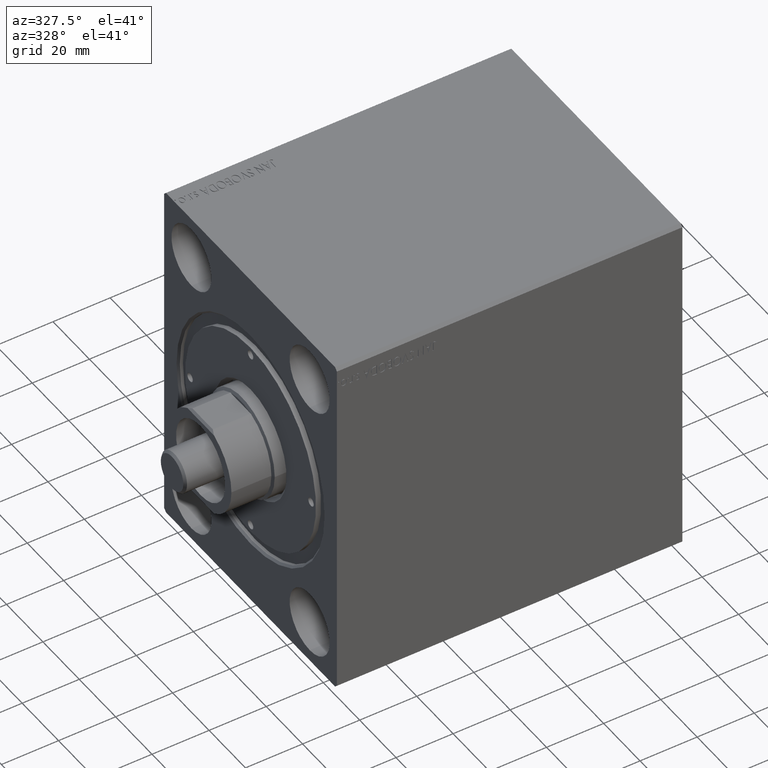
[diagram: clean part render]
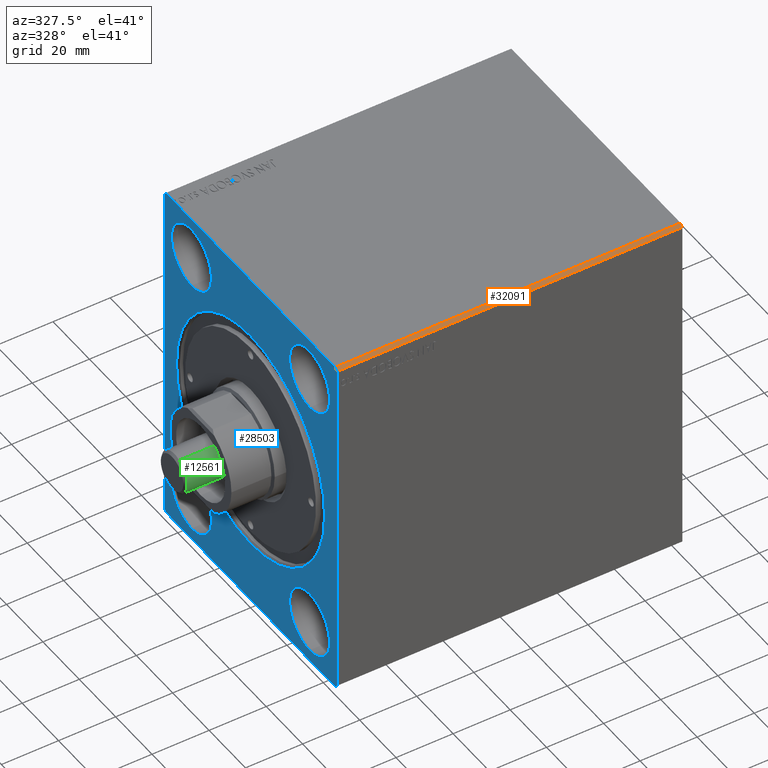
[diagram: same view with three faces highlighted in distinct colors, each labeled with its STEP entity id]
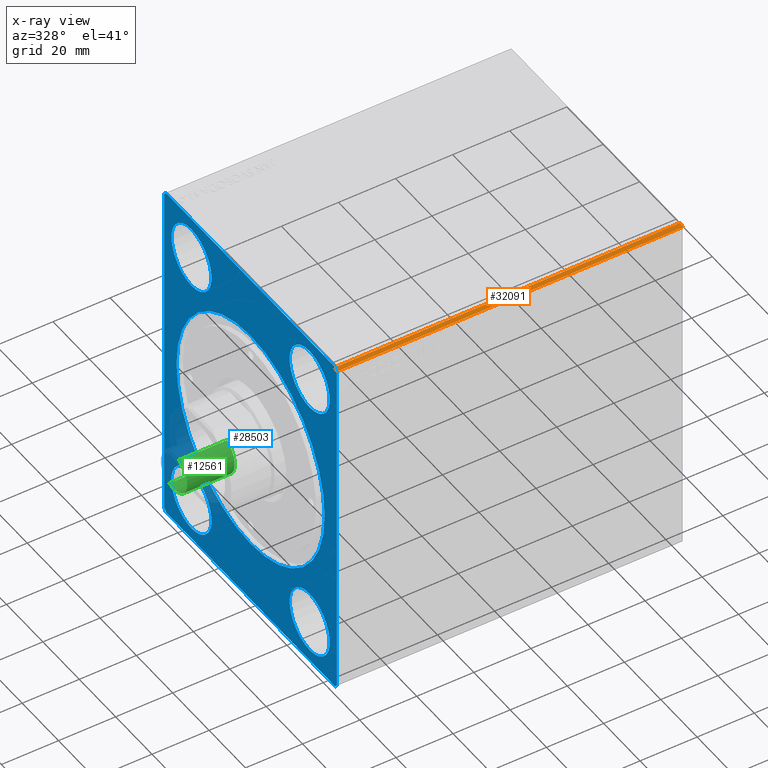
[diagram: x-ray of the same camera — body ghosted, the three highlighted faces saturated]
A machine part, auxiliary view with three faces highlighted in distinct colors.
The next image is the same camera in x-ray (body ghosted, the three faces saturated) — at least one of them is partly hidden behind the body in this view.
Their STEP definitions:

[orange] entity #32091 — the highlighted planar face has unit normal (0, 0.7071, -0.7071).
#1975 = CARTESIAN_POINT ( 'NONE',  ( 121.0000000000000000, -47.50000000000001421, 61.49999999999997868 ) ) ;
#2354 = VERTEX_POINT ( 'NONE', #1975 ) ;
#2754 = CARTESIAN_POINT ( 'NONE',  ( 121.0000000000000000, -47.50000000000001421, 61.49999999999997868 ) ) ;
#2864 = VERTEX_POINT ( 'NONE', #10656 ) ;
#2945 = DIRECTION ( 'NONE',  ( 0.000000000000000000, 0.7071067811865475727, -0.7071067811865475727 ) ) ;
#3868 = EDGE_CURVE ( 'NONE', #33225, #25822, #42419, .T. ) ;
#4122 = CARTESIAN_POINT ( 'NONE',  ( 0.000000000000000000, -46.50000000000001421, 62.49999999999997868 ) ) ;
#4452 = ORIENTED_EDGE ( 'NONE', *, *, #24323, .T. ) ;
#6919 = VECTOR ( 'NONE', #12329, 1000.000000000000000 ) ;
#8288 = ORIENTED_EDGE ( 'NONE', *, *, #25709, .F. ) ;
#9176 = LINE ( 'NONE', #16149, #6919 ) ;
#9490 = PLANE ( 'NONE',  #40849 ) ;
#9739 = LINE ( 'NONE', #2754, #19890 ) ;
#10656 = CARTESIAN_POINT ( 'NONE',  ( 121.0000000000000000, -46.50000000000001421, 62.49999999999997868 ) ) ;
#11609 = DIRECTION ( 'NONE',  ( 0.000000000000000000, -0.7071067811865474617, -0.7071067811865474617 ) ) ;
#12329 = DIRECTION ( 'NONE',  ( -1.000000000000000000, -0.000000000000000000, -0.000000000000000000 ) ) ;
#15251 = ORIENTED_EDGE ( 'NONE', *, *, #3868, .T. ) ;
#16149 = CARTESIAN_POINT ( 'NONE',  ( 121.0000000000000000, -46.50000000000001421, 62.49999999999997868 ) ) ;
#16266 = DIRECTION ( 'NONE',  ( -1.000000000000000000, -0.000000000000000000, -0.000000000000000000 ) ) ;
#19890 = VECTOR ( 'NONE', #16266, 1000.000000000000000 ) ;
#20362 = DIRECTION ( 'NONE',  ( 0.000000000000000000, -0.7071067811865474617, -0.7071067811865474617 ) ) ;
#20537 = ORIENTED_EDGE ( 'NONE', *, *, #27415, .F. ) ;
#20619 = VECTOR ( 'NONE', #20362, 1000.000000000000114 ) ;
#24165 = LINE ( 'NONE', #43764, #20619 ) ;
#24323 = EDGE_CURVE ( 'NONE', #2864, #33225, #9176, .T. ) ;
#25088 = CARTESIAN_POINT ( 'NONE',  ( 0.000000000000000000, -46.50000000000001421, 62.49999999999997868 ) ) ;
#25709 = EDGE_CURVE ( 'NONE', #2354, #25822, #9739, .T. ) ;
#25822 = VERTEX_POINT ( 'NONE', #37396 ) ;
#26542 = EDGE_LOOP ( 'NONE', ( #15251, #8288, #20537, #4452 ) ) ;
#27415 = EDGE_CURVE ( 'NONE', #2864, #2354, #24165, .T. ) ;
#29716 = CARTESIAN_POINT ( 'NONE',  ( 121.0000000000000000, -46.50000000000001421, 62.49999999999997868 ) ) ;
#29932 = FACE_OUTER_BOUND ( 'NONE', #26542, .T. ) ;
#32091 = ADVANCED_FACE ( 'NONE', ( #29932 ), #9490, .F. ) ;
#33225 = VERTEX_POINT ( 'NONE', #4122 ) ;
#35255 = VECTOR ( 'NONE', #11609, 1000.000000000000114 ) ;
#36927 = DIRECTION ( 'NONE',  ( 0.000000000000000000, 0.7071067811865474617, 0.7071067811865474617 ) ) ;
#37396 = CARTESIAN_POINT ( 'NONE',  ( 0.000000000000000000, -47.50000000000001421, 61.49999999999997868 ) ) ;
#40849 = AXIS2_PLACEMENT_3D ( 'NONE', #29716, #2945, #36927 ) ;
#42419 = LINE ( 'NONE', #25088, #35255 ) ;
#43764 = CARTESIAN_POINT ( 'NONE',  ( 121.0000000000000000, -46.50000000000001421, 62.49999999999997868 ) ) ;

[blue] entity #28503 — the highlighted planar face has unit normal (1, 0, 0).
#1 = CARTESIAN_POINT ( 'NONE',  ( 0.000000000000000000, -32.50000000000000000, -47.50000000000000000 ) ) ;
#70 = DIRECTION ( 'NONE',  ( 0.000000000000000000, 0.000000000000000000, -1.000000000000000000 ) ) ;
#278 = EDGE_CURVE ( 'NONE', #40689, #43342, #18637, .T. ) ;
#525 = DIRECTION ( 'NONE',  ( 1.000000000000000000, -0.000000000000000000, -0.000000000000000000 ) ) ;
#1278 = AXIS2_PLACEMENT_3D ( 'NONE', #1, #33317, #37353 ) ;
#1337 = EDGE_CURVE ( 'NONE', #3130, #6342, #41623, .T. ) ;
#1348 = EDGE_LOOP ( 'NONE', ( #37266, #19938 ) ) ;
#1397 = VECTOR ( 'NONE', #19410, 1000.000000000000000 ) ;
#1519 = VERTEX_POINT ( 'NONE', #16409 ) ;
#1808 = DIRECTION ( 'NONE',  ( 0.000000000000000000, 0.000000000000000000, -1.000000000000000000 ) ) ;
#2723 = CARTESIAN_POINT ( 'NONE',  ( 0.000000000000000000, 47.50000000000000000, 61.49999999999998579 ) ) ;
#2757 = VERTEX_POINT ( 'NONE', #27967 ) ;
#3002 = CARTESIAN_POINT ( 'NONE',  ( 0.000000000000000000, 0.000000000000000000, 0.000000000000000000 ) ) ;
#3130 = VERTEX_POINT ( 'NONE', #15694 ) ;
#3158 = DIRECTION ( 'NONE',  ( 0.000000000000000000, 0.7071067811865451302, -0.7071067811865500152 ) ) ;
#3281 = EDGE_CURVE ( 'NONE', #26745, #5680, #36684, .T. ) ;
#3442 = EDGE_CURVE ( 'NONE', #25822, #26407, #3840, .T. ) ;
#3659 = DIRECTION ( 'NONE',  ( 0.000000000000000000, 0.000000000000000000, -1.000000000000000000 ) ) ;
#3784 = CARTESIAN_POINT ( 'NONE',  ( 0.000000000000000000, 0.000000000000000000, 0.000000000000000000 ) ) ;
#3840 = LINE ( 'NONE', #15534, #8656 ) ;
#3868 = EDGE_CURVE ( 'NONE', #33225, #25822, #42419, .T. ) ;
#3897 = CARTESIAN_POINT ( 'NONE',  ( 0.000000000000000000, -32.50000000000000000, -47.50000000000000000 ) ) ;
#4122 = CARTESIAN_POINT ( 'NONE',  ( 0.000000000000000000, -46.50000000000001421, 62.49999999999997868 ) ) ;
#4349 = DIRECTION ( 'NONE',  ( 0.000000000000000000, 0.000000000000000000, -1.000000000000000000 ) ) ;
#4485 = VECTOR ( 'NONE', #5696, 999.9999999999998863 ) ;
#4789 = CARTESIAN_POINT ( 'NONE',  ( 0.000000000000000000, 46.50000000000000000, 62.49999999999998579 ) ) ;
#4831 = EDGE_CURVE ( 'NONE', #13912, #29245, #6207, .T. ) ;
#5680 = VERTEX_POINT ( 'NONE', #33278 ) ;
#5695 = LINE ( 'NONE', #4789, #1397 ) ;
#5696 = DIRECTION ( 'NONE',  ( 0.000000000000000000, 0.7071067811865574537, 0.7071067811865376918 ) ) ;
#6207 = LINE ( 'NONE', #19257, #38138 ) ;
#6342 = VERTEX_POINT ( 'NONE', #33392 ) ;
#6750 = EDGE_CURVE ( 'NONE', #10697, #24282, #20222, .T. ) ;
#7044 = FACE_BOUND ( 'NONE', #37785, .T. ) ;
#8124 = ORIENTED_EDGE ( 'NONE', *, *, #3442, .F. ) ;
#8656 = VECTOR ( 'NONE', #43188, 1000.000000000000000 ) ;
#9065 = LINE ( 'NONE', #36508, #4485 ) ;
#9392 = AXIS2_PLACEMENT_3D ( 'NONE', #24408, #24849, #12652 ) ;
#9521 = EDGE_CURVE ( 'NONE', #29245, #3130, #9065, .T. ) ;
#9660 = VECTOR ( 'NONE', #3158, 1000.000000000000114 ) ;
#9798 = DIRECTION ( 'NONE',  ( 0.000000000000000000, 1.000000000000000000, 1.492235248152092278E-16 ) ) ;
#9988 = CARTESIAN_POINT ( 'NONE',  ( 0.000000000000000000, -32.50000000000000000, -58.50000000000000000 ) ) ;
#10199 = DIRECTION ( 'NONE',  ( 1.000000000000000000, -0.000000000000000000, -0.000000000000000000 ) ) ;
#10215 = CARTESIAN_POINT ( 'NONE',  ( 0.000000000000000000, 0.000000000000000000, 40.70000000000001705 ) ) ;
#10697 = VERTEX_POINT ( 'NONE', #23821 ) ;
#10755 = DIRECTION ( 'NONE',  ( 0.000000000000000000, 0.000000000000000000, -1.000000000000000000 ) ) ;
#10969 = ORIENTED_EDGE ( 'NONE', *, *, #278, .T. ) ;
#11346 = CIRCLE ( 'NONE', #26431, 40.70000000000001705 ) ;
#11385 = DIRECTION ( 'NONE',  ( 0.000000000000000000, 0.000000000000000000, 1.000000000000000000 ) ) ;
#11609 = DIRECTION ( 'NONE',  ( 0.000000000000000000, -0.7071067811865474617, -0.7071067811865474617 ) ) ;
#11681 = DIRECTION ( 'NONE',  ( 1.000000000000000000, 0.000000000000000000, 0.000000000000000000 ) ) ;
#12211 = VECTOR ( 'NONE', #13309, 1000.000000000000000 ) ;
#12652 = DIRECTION ( 'NONE',  ( 0.000000000000000000, 0.000000000000000000, 1.000000000000000000 ) ) ;
#12724 = EDGE_CURVE ( 'NONE', #5680, #26745, #16779, .T. ) ;
#13309 = DIRECTION ( 'NONE',  ( 0.000000000000000000, -1.128275431529630729E-16, 1.000000000000000000 ) ) ;
#13573 = CARTESIAN_POINT ( 'NONE',  ( 0.000000000000000000, 32.50000000000000000, -47.50000000000000000 ) ) ;
#13868 = ORIENTED_EDGE ( 'NONE', *, *, #33207, .T. ) ;
#13912 = VERTEX_POINT ( 'NONE', #17204 ) ;
#14489 = AXIS2_PLACEMENT_3D ( 'NONE', #3784, #26578, #10755 ) ;
#15534 = CARTESIAN_POINT ( 'NONE',  ( 0.000000000000000000, -47.50000000000001421, 61.49999999999997868 ) ) ;
#15574 = ORIENTED_EDGE ( 'NONE', *, *, #6750, .T. ) ;
#15625 = LINE ( 'NONE', #29325, #9660 ) ;
#15694 = CARTESIAN_POINT ( 'NONE',  ( 0.000000000000000000, 47.50000000000001421, -61.50000000000001421 ) ) ;
#16116 = EDGE_CURVE ( 'NONE', #26407, #13912, #15625, .T. ) ;
#16409 = CARTESIAN_POINT ( 'NONE',  ( 0.000000000000000000, -32.50000000000000000, 36.50000000000000711 ) ) ;
#16450 = AXIS2_PLACEMENT_3D ( 'NONE', #28913, #28246, #11385 ) ;
#16779 = CIRCLE ( 'NONE', #26819, 10.99999999999999645 ) ;
#17057 = ORIENTED_EDGE ( 'NONE', *, *, #43610, .T. ) ;
#17204 = CARTESIAN_POINT ( 'NONE',  ( 0.000000000000000000, -46.50000000000000000, -62.50000000000001421 ) ) ;
#17666 = VERTEX_POINT ( 'NONE', #24107 ) ;
#18637 = CIRCLE ( 'NONE', #22228, 10.99999999999999645 ) ;
#19257 = CARTESIAN_POINT ( 'NONE',  ( 0.000000000000000000, -46.50000000000000000, -62.50000000000001421 ) ) ;
#19410 = DIRECTION ( 'NONE',  ( 0.000000000000000000, -1.000000000000000000, -7.461176240760460157E-17 ) ) ;
#19938 = ORIENTED_EDGE ( 'NONE', *, *, #12724, .F. ) ;
#20051 = LINE ( 'NONE', #2723, #31415 ) ;
#20222 = CIRCLE ( 'NONE', #14489, 40.70000000000001705 ) ;
#20746 = FACE_BOUND ( 'NONE', #40372, .T. ) ;
#20785 = ORIENTED_EDGE ( 'NONE', *, *, #35995, .F. ) ;
#21451 = CIRCLE ( 'NONE', #16450, 10.99999999999999645 ) ;
#21531 = ORIENTED_EDGE ( 'NONE', *, *, #9521, .F. ) ;
#21767 = ORIENTED_EDGE ( 'NONE', *, *, #4831, .F. ) ;
#22228 = AXIS2_PLACEMENT_3D ( 'NONE', #42300, #28791, #1808 ) ;
#23322 = ORIENTED_EDGE ( 'NONE', *, *, #3868, .F. ) ;
#23421 = VERTEX_POINT ( 'NONE', #9988 ) ;
#23467 = FACE_OUTER_BOUND ( 'NONE', #42630, .T. ) ;
#23688 = CARTESIAN_POINT ( 'NONE',  ( 0.000000000000000000, 32.50000000000000000, 47.50000000000000000 ) ) ;
#23742 = CARTESIAN_POINT ( 'NONE',  ( 0.000000000000000000, 32.50000000000000000, 58.50000000000000000 ) ) ;
#23821 = CARTESIAN_POINT ( 'NONE',  ( 0.000000000000000000, 4.984312472529728892E-15, -40.70000000000001705 ) ) ;
#24107 = CARTESIAN_POINT ( 'NONE',  ( 0.000000000000000000, -32.50000000000000000, -36.50000000000000711 ) ) ;
#24282 = VERTEX_POINT ( 'NONE', #10215 ) ;
#24408 = CARTESIAN_POINT ( 'NONE',  ( 0.000000000000000000, 32.50000000000000000, -47.50000000000000000 ) ) ;
#24849 = DIRECTION ( 'NONE',  ( -1.000000000000000000, 0.000000000000000000, 0.000000000000000000 ) ) ;
#25088 = CARTESIAN_POINT ( 'NONE',  ( 0.000000000000000000, -46.50000000000001421, 62.49999999999997868 ) ) ;
#25522 = CARTESIAN_POINT ( 'NONE',  ( 0.000000000000000000, 46.50000000000000000, -62.50000000000000000 ) ) ;
#25822 = VERTEX_POINT ( 'NONE', #37396 ) ;
#26407 = VERTEX_POINT ( 'NONE', #39225 ) ;
#26431 = AXIS2_PLACEMENT_3D ( 'NONE', #44356, #11681, #41207 ) ;
#26578 = DIRECTION ( 'NONE',  ( 1.000000000000000000, 0.000000000000000000, 0.000000000000000000 ) ) ;
#26618 = DIRECTION ( 'NONE',  ( 1.000000000000000000, 0.000000000000000000, 0.000000000000000000 ) ) ;
#26658 = CARTESIAN_POINT ( 'NONE',  ( 0.000000000000000000, 46.50000000000000000, 62.49999999999998579 ) ) ;
#26745 = VERTEX_POINT ( 'NONE', #26759 ) ;
#26759 = CARTESIAN_POINT ( 'NONE',  ( 0.000000000000000000, 32.50000000000000000, -36.50000000000000711 ) ) ;
#26819 = AXIS2_PLACEMENT_3D ( 'NONE', #13573, #34474, #37630 ) ;
#27494 = FACE_BOUND ( 'NONE', #32150, .T. ) ;
#27822 = AXIS2_PLACEMENT_3D ( 'NONE', #3002, #26618, #3659 ) ;
#27967 = CARTESIAN_POINT ( 'NONE',  ( 0.000000000000000000, -32.50000000000000000, 58.50000000000000000 ) ) ;
#28118 = ORIENTED_EDGE ( 'NONE', *, *, #16116, .F. ) ;
#28246 = DIRECTION ( 'NONE',  ( -1.000000000000000000, 0.000000000000000000, 0.000000000000000000 ) ) ;
#28503 = ADVANCED_FACE ( 'NONE', ( #27494, #37847, #7044, #23467, #20746, #34475 ), #33824, .F. ) ;
#28700 = AXIS2_PLACEMENT_3D ( 'NONE', #40227, #32181, #33250 ) ;
#28791 = DIRECTION ( 'NONE',  ( 1.000000000000000000, -0.000000000000000000, -0.000000000000000000 ) ) ;
#28913 = CARTESIAN_POINT ( 'NONE',  ( 0.000000000000000000, -32.50000000000000000, 47.50000000000000000 ) ) ;
#28948 = EDGE_CURVE ( 'NONE', #6342, #29888, #20051, .T. ) ;
#29245 = VERTEX_POINT ( 'NONE', #25522 ) ;
#29325 = CARTESIAN_POINT ( 'NONE',  ( 0.000000000000000000, -47.49999999999999289, -61.50000000000001421 ) ) ;
#29888 = VERTEX_POINT ( 'NONE', #26658 ) ;
#30192 = EDGE_CURVE ( 'NONE', #24282, #10697, #11346, .T. ) ;
#30410 = ORIENTED_EDGE ( 'NONE', *, *, #28948, .F. ) ;
#31415 = VECTOR ( 'NONE', #33771, 1000.000000000000114 ) ;
#31484 = CARTESIAN_POINT ( 'NONE',  ( 0.000000000000000000, 47.50000000000001421, -61.50000000000001421 ) ) ;
#32105 = ORIENTED_EDGE ( 'NONE', *, *, #38751, .F. ) ;
#32150 = EDGE_LOOP ( 'NONE', ( #32105, #20785 ) ) ;
#32181 = DIRECTION ( 'NONE',  ( -1.000000000000000000, 0.000000000000000000, 0.000000000000000000 ) ) ;
#32244 = CIRCLE ( 'NONE', #35779, 10.99999999999999645 ) ;
#32841 = ORIENTED_EDGE ( 'NONE', *, *, #1337, .F. ) ;
#33207 = EDGE_CURVE ( 'NONE', #17666, #23421, #32244, .T. ) ;
#33225 = VERTEX_POINT ( 'NONE', #4122 ) ;
#33250 = DIRECTION ( 'NONE',  ( 0.000000000000000000, 0.000000000000000000, 1.000000000000000000 ) ) ;
#33278 = CARTESIAN_POINT ( 'NONE',  ( 0.000000000000000000, 32.50000000000000000, -58.50000000000000000 ) ) ;
#33317 = DIRECTION ( 'NONE',  ( 1.000000000000000000, -0.000000000000000000, -0.000000000000000000 ) ) ;
#33392 = CARTESIAN_POINT ( 'NONE',  ( 0.000000000000000000, 47.50000000000000000, 61.49999999999998579 ) ) ;
#33422 = EDGE_CURVE ( 'NONE', #29888, #33225, #5695, .T. ) ;
#33757 = CIRCLE ( 'NONE', #28700, 10.99999999999999645 ) ;
#33771 = DIRECTION ( 'NONE',  ( 0.000000000000000000, -0.7071067811865474617, 0.7071067811865474617 ) ) ;
#33824 = PLANE ( 'NONE',  #27822 ) ;
#34474 = DIRECTION ( 'NONE',  ( -1.000000000000000000, 0.000000000000000000, 0.000000000000000000 ) ) ;
#34475 = FACE_BOUND ( 'NONE', #36555, .T. ) ;
#35116 = CIRCLE ( 'NONE', #43718, 10.99999999999999645 ) ;
#35255 = VECTOR ( 'NONE', #11609, 1000.000000000000114 ) ;
#35779 = AXIS2_PLACEMENT_3D ( 'NONE', #3897, #525, #4349 ) ;
#35995 = EDGE_CURVE ( 'NONE', #1519, #2757, #21451, .T. ) ;
#36482 = CIRCLE ( 'NONE', #1278, 10.99999999999999645 ) ;
#36508 = CARTESIAN_POINT ( 'NONE',  ( 0.000000000000000000, 46.50000000000000000, -62.50000000000000000 ) ) ;
#36555 = EDGE_LOOP ( 'NONE', ( #17057, #10969 ) ) ;
#36684 = CIRCLE ( 'NONE', #9392, 10.99999999999999645 ) ;
#37266 = ORIENTED_EDGE ( 'NONE', *, *, #3281, .F. ) ;
#37353 = DIRECTION ( 'NONE',  ( 0.000000000000000000, 0.000000000000000000, -1.000000000000000000 ) ) ;
#37396 = CARTESIAN_POINT ( 'NONE',  ( 0.000000000000000000, -47.50000000000001421, 61.49999999999997868 ) ) ;
#37630 = DIRECTION ( 'NONE',  ( 0.000000000000000000, 0.000000000000000000, 1.000000000000000000 ) ) ;
#37785 = EDGE_LOOP ( 'NONE', ( #38063, #15574 ) ) ;
#37847 = FACE_BOUND ( 'NONE', #1348, .T. ) ;
#38063 = ORIENTED_EDGE ( 'NONE', *, *, #30192, .T. ) ;
#38138 = VECTOR ( 'NONE', #9798, 1000.000000000000000 ) ;
#38751 = EDGE_CURVE ( 'NONE', #2757, #1519, #33757, .T. ) ;
#39225 = CARTESIAN_POINT ( 'NONE',  ( 0.000000000000000000, -47.49999999999999289, -61.50000000000001421 ) ) ;
#40227 = CARTESIAN_POINT ( 'NONE',  ( 0.000000000000000000, -32.50000000000000000, 47.50000000000000000 ) ) ;
#40372 = EDGE_LOOP ( 'NONE', ( #13868, #42780 ) ) ;
#40689 = VERTEX_POINT ( 'NONE', #40940 ) ;
#40741 = EDGE_CURVE ( 'NONE', #23421, #17666, #36482, .T. ) ;
#40940 = CARTESIAN_POINT ( 'NONE',  ( 0.000000000000000000, 32.50000000000000000, 36.50000000000000711 ) ) ;
#41207 = DIRECTION ( 'NONE',  ( 0.000000000000000000, 0.000000000000000000, -1.000000000000000000 ) ) ;
#41623 = LINE ( 'NONE', #31484, #12211 ) ;
#42300 = CARTESIAN_POINT ( 'NONE',  ( 0.000000000000000000, 32.50000000000000000, 47.50000000000000000 ) ) ;
#42419 = LINE ( 'NONE', #25088, #35255 ) ;
#42571 = ORIENTED_EDGE ( 'NONE', *, *, #33422, .F. ) ;
#42630 = EDGE_LOOP ( 'NONE', ( #30410, #32841, #21531, #21767, #28118, #8124, #23322, #42571 ) ) ;
#42780 = ORIENTED_EDGE ( 'NONE', *, *, #40741, .T. ) ;
#43188 = DIRECTION ( 'NONE',  ( 0.000000000000000000, 1.692413147294445970E-16, -1.000000000000000000 ) ) ;
#43342 = VERTEX_POINT ( 'NONE', #23742 ) ;
#43610 = EDGE_CURVE ( 'NONE', #43342, #40689, #35116, .T. ) ;
#43718 = AXIS2_PLACEMENT_3D ( 'NONE', #23688, #10199, #70 ) ;
#44356 = CARTESIAN_POINT ( 'NONE',  ( 0.000000000000000000, 0.000000000000000000, 0.000000000000000000 ) ) ;

[green] entity #12561 — the highlighted cylindrical surface (edge-blend (fillet) strip) has radius 7 mm, axis along (1, -0, 0).
#60 = AXIS2_PLACEMENT_3D ( 'NONE', #15655, #2366, #19903 ) ;
#533 = ORIENTED_EDGE ( 'NONE', *, *, #33661, .F. ) ;
#2366 = DIRECTION ( 'NONE',  ( -1.000000000000000000, 2.775557561562891967E-17, -0.000000000000000000 ) ) ;
#3944 = EDGE_CURVE ( 'NONE', #6769, #32054, #21603, .T. ) ;
#4687 = DIRECTION ( 'NONE',  ( -1.000000000000000000, 2.775557561562891967E-17, -0.000000000000000000 ) ) ;
#5140 = CARTESIAN_POINT ( 'NONE',  ( 2.500000000000419220, -6.938893903908393180E-17, 0.000000000000000000 ) ) ;
#6510 = EDGE_CURVE ( 'NONE', #32054, #22546, #21203, .T. ) ;
#6722 = ORIENTED_EDGE ( 'NONE', *, *, #3944, .T. ) ;
#6769 = VERTEX_POINT ( 'NONE', #8063 ) ;
#8063 = CARTESIAN_POINT ( 'NONE',  ( 19.20000000000041851, -6.999999999999674039, 0.000000000000000000 ) ) ;
#12561 = ADVANCED_FACE ( 'NONE', ( #28217 ), #38565, .T. ) ;
#14474 = DIRECTION ( 'NONE',  ( -1.000000000000000000, 2.775557561562891967E-17, -0.000000000000000000 ) ) ;
#15655 = CARTESIAN_POINT ( 'NONE',  ( 19.20000000000041851, -5.329070518200868540E-16, 0.000000000000000000 ) ) ;
#17781 = DIRECTION ( 'NONE',  ( -1.000000000000000000, 2.775557561562891967E-17, -0.000000000000000000 ) ) ;
#18857 = DIRECTION ( 'NONE',  ( 0.000000000000000000, -1.000000000000000000, 0.000000000000000000 ) ) ;
#18909 = AXIS2_PLACEMENT_3D ( 'NONE', #22145, #39242, #28883 ) ;
#19110 = ORIENTED_EDGE ( 'NONE', *, *, #6510, .T. ) ;
#19903 = DIRECTION ( 'NONE',  ( 0.000000000000000000, -1.000000000000000000, 0.000000000000000000 ) ) ;
#21203 = LINE ( 'NONE', #34930, #33174 ) ;
#21603 = CIRCLE ( 'NONE', #60, 6.999999999999673150 ) ;
#22130 = VECTOR ( 'NONE', #17781, 1000.000000000000000 ) ;
#22145 = CARTESIAN_POINT ( 'NONE',  ( 0.000000000000000000, 0.000000000000000000, 0.000000000000000000 ) ) ;
#22546 = VERTEX_POINT ( 'NONE', #42623 ) ;
#23057 = VERTEX_POINT ( 'NONE', #23853 ) ;
#23853 = CARTESIAN_POINT ( 'NONE',  ( 2.500000000000419220, -6.999999999999685585, 8.572527594031086648E-16 ) ) ;
#24299 = LINE ( 'NONE', #34660, #22130 ) ;
#25173 = ORIENTED_EDGE ( 'NONE', *, *, #35605, .F. ) ;
#25753 = AXIS2_PLACEMENT_3D ( 'NONE', #5140, #4687, #18857 ) ;
#27215 = CARTESIAN_POINT ( 'NONE',  ( 19.20000000000041851, 6.999999999999672262, 8.572527594031076787E-16 ) ) ;
#27926 = CIRCLE ( 'NONE', #25753, 6.999999999999685585 ) ;
#28217 = FACE_OUTER_BOUND ( 'NONE', #39726, .T. ) ;
#28883 = DIRECTION ( 'NONE',  ( -2.775557561562891967E-17, -1.000000000000000000, 0.000000000000000000 ) ) ;
#32054 = VERTEX_POINT ( 'NONE', #27215 ) ;
#33174 = VECTOR ( 'NONE', #14474, 1000.000000000000000 ) ;
#33661 = EDGE_CURVE ( 'NONE', #6769, #23057, #24299, .T. ) ;
#34660 = CARTESIAN_POINT ( 'NONE',  ( -1.942890293093935445E-16, -6.999999999999679368, 0.000000000000000000 ) ) ;
#34930 = CARTESIAN_POINT ( 'NONE',  ( 1.942890293093935445E-16, 6.999999999999679368, 8.572527594031079745E-16 ) ) ;
#35605 = EDGE_CURVE ( 'NONE', #23057, #22546, #27926, .T. ) ;
#38565 = CYLINDRICAL_SURFACE ( 'NONE', #18909, 6.999999999999679368 ) ;
#39242 = DIRECTION ( 'NONE',  ( -1.000000000000000000, 2.775557561562891967E-17, -0.000000000000000000 ) ) ;
#39726 = EDGE_LOOP ( 'NONE', ( #6722, #19110, #25173, #533 ) ) ;
#42623 = CARTESIAN_POINT ( 'NONE',  ( 2.500000000000419220, 6.999999999999685585, 0.000000000000000000 ) ) ;